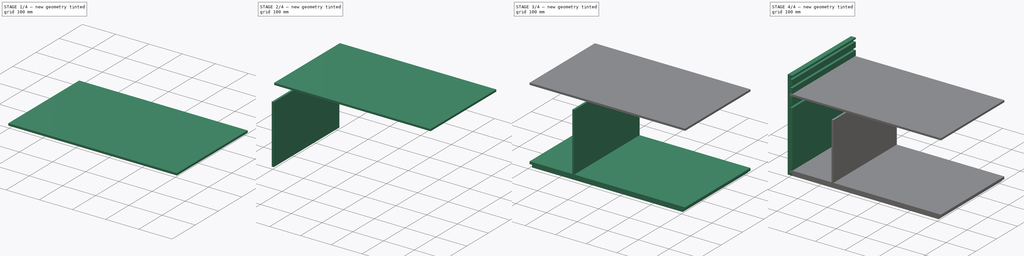
[diagram: build sequence overview — one tinted view per stage of 4, left to right]
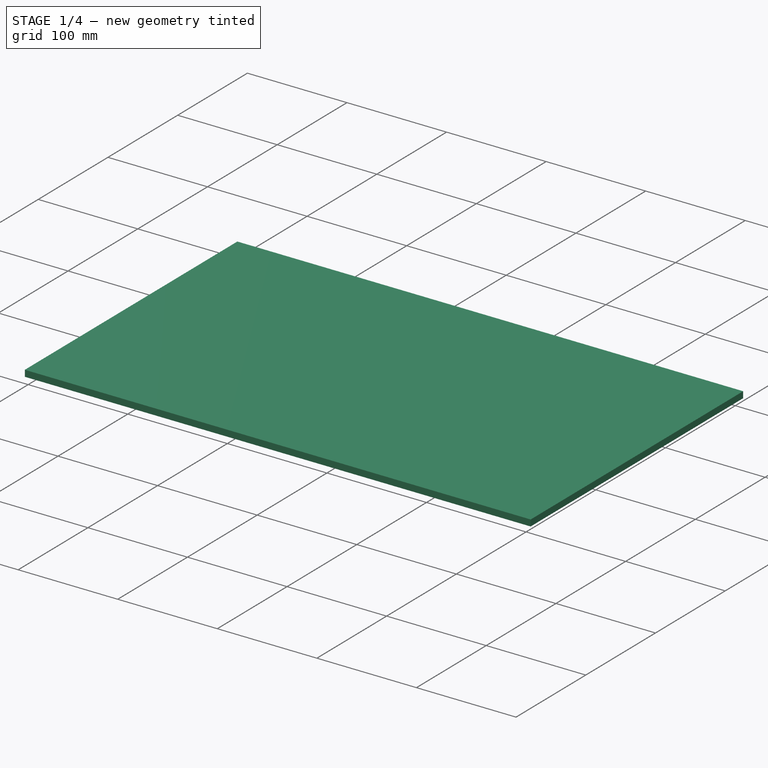
[diagram: stage 1 of 4 — iso view after this stage's code; geometry added in this stage tinted green]
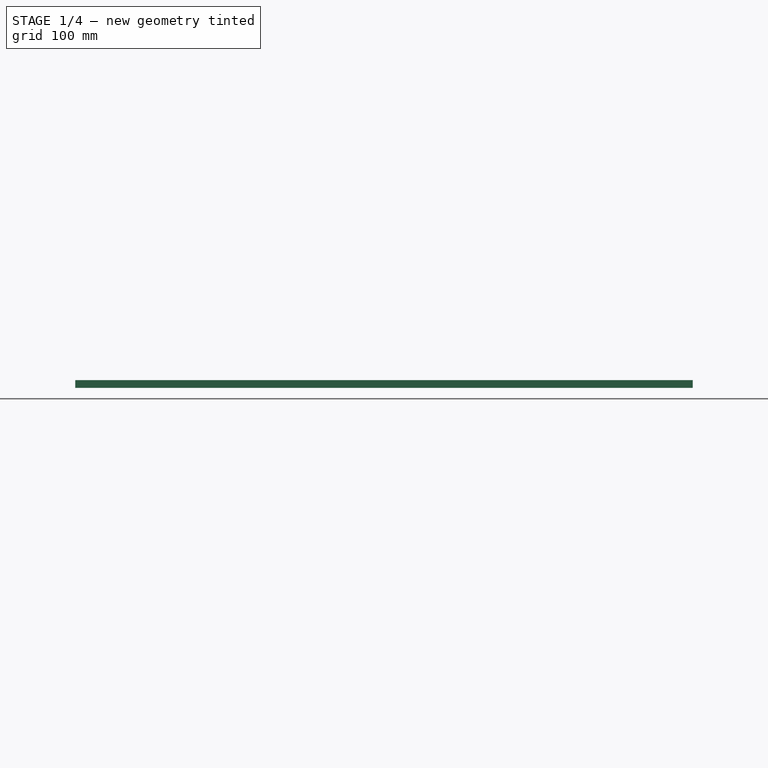
[diagram: stage 1 of 4 — front view after this stage's code; geometry added in this stage tinted green]
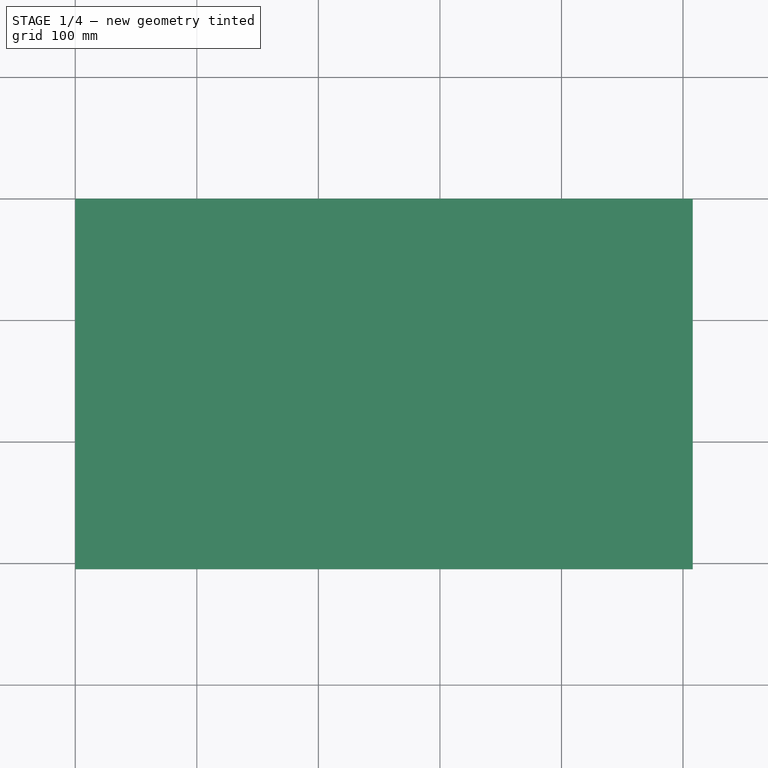
[diagram: stage 1 of 4 — top view after this stage's code; geometry added in this stage tinted green]
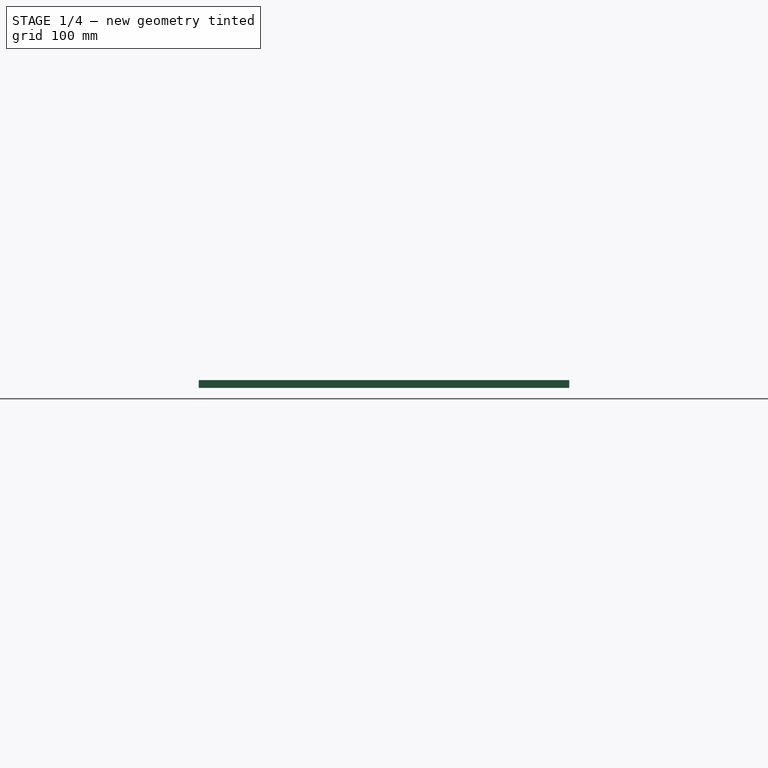
[diagram: stage 1 of 4 — right view after this stage's code; geometry added in this stage tinted green]
FCSTD DOCUMENT  (FreeCAD 0.19R24291 (Git))
Label: SanderNSandPaper
License: All rights reserved
LicenseURL: http://en.wikipedia.org/wiki/All_rights_reserved
objects: PartDesign::Body×9, Sketcher::SketchObject×5, PartDesign::FeatureBase×5, PartDesign::Pad×4, PartDesign::Pocket×1, App::Part×1
note: 29 computed .brp shape members not serialized (recipe doc carries the construction recipe); baked Part::Feature solids carry a one-line shape summary decoded from their .brp

FEATURE [PartDesign::Body] Body007  label="ShelfSupportClone"
  Group = -> [Clone004]
  Origin = -> Origin008
  Placement = pos=(224.866,0,0) rot=(0,0,1;0rad)
  Tip = -> Clone004
FEATURE [Sketcher::SketchObject] Sketch003
  FullyConstrained = true
  MapMode = 5
  Placement = pos=(0,0,0) rot=(1,0,0;1.5708rad)
  Support = -> [XZ_Plane009]
  sketch-geometry (4):
    g0: LineSegment StartX=0 StartY=0 StartZ=0 EndX=508 EndY=0 EndZ=0
    g1: LineSegment StartX=508 StartY=0 StartZ=0 EndX=508 EndY=6.35 EndZ=0
    g2: LineSegment StartX=508 StartY=6.35 StartZ=0 EndX=0 EndY=6.35 EndZ=0
    g3: LineSegment StartX=0 StartY=6.35 StartZ=0 EndX=0 EndY=0 EndZ=0
  constraints (11):
    c: Coincident(g0,g1)
    c: Coincident(g1,g2)
    c: Coincident(g2,g3)
    c: Coincident(g3,g0)
    c: Horizontal(g0)
    c: Horizontal(g2)
    c: Vertical(g1)
    c: Vertical(g3)
    c: Coincident(g0,g-1)
    c: DistanceX(g0,g0) = 508
    c: DistanceY(g3,g3) = 6.35
FEATURE [PartDesign::Pad] Pad003
  Direction = (1,1,1)
  Length = 304.8
  Length2 = 99.9998
  Placement = pos=(0,0,0) rot=(1,0,0;1.5708rad)
  Profile = -> Sketch003
  Type = 0
FEATURE [Sketcher::SketchObject] Sketch004
  FullyConstrained = false
  MapMode = 5
  Placement = pos=(0,0,0) rot=(0.57735,0.57735,0.57735;2.0944rad)
  Support = -> [YZ_Plane009]
  sketch-geometry (4):
    g0: LineSegment StartX=-203.2 StartY=-16.9822 StartZ=0 EndX=-76.2 EndY=-16.9822 EndZ=0
    g1: LineSegment StartX=-76.2 StartY=-55.0822 StartZ=0 EndX=-203.2 EndY=-55.0822 EndZ=0
    g2: ArcOfCircle CenterX=-203.2 CenterY=-36.0322 CenterZ=0 NormalX=0 NormalY=0 NormalZ=1 AngleXU=0 Radius=19.05 StartAngle=1.5708 EndAngle=4.71239
    g3: ArcOfCircle CenterX=-76.2 CenterY=-36.0322 CenterZ=0 NormalX=0 NormalY=0 NormalZ=1 AngleXU=0 Radius=19.05 StartAngle=4.71239 EndAngle=7.85398
  constraints (10):
    c: Horizontal(g0)
    c: Horizontal(g1)
    c: DistanceX(g0,g0) = 127
    c: Symmetric(g0,g1,g2)
    c: Coincident(g3,g0)
    c: Coincident(g2,g0)
    c: Equal(g0,g1)
    c: Vertical(g0,g1)
    c: Tangent(g1,g3) = 1.5708
    c: DistanceY(g1,g0) = 38.1
FEATURE [PartDesign::Pocket] Pocket
  BaseFeature = -> Pad003
  Length = 5.0038
  Length2 = 99.9998
  Placement = pos=(0,0,0) rot=(1,0,0;1.5708rad)
  Profile = -> Sketch004
  Type = 1
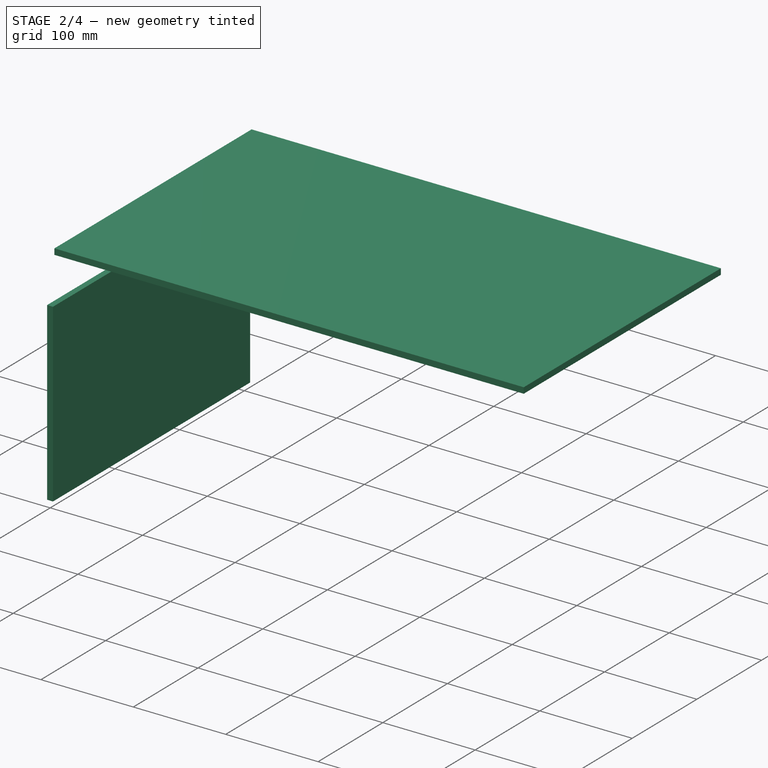
[diagram: stage 2 of 4 — iso view after this stage's code; geometry added in this stage tinted green]
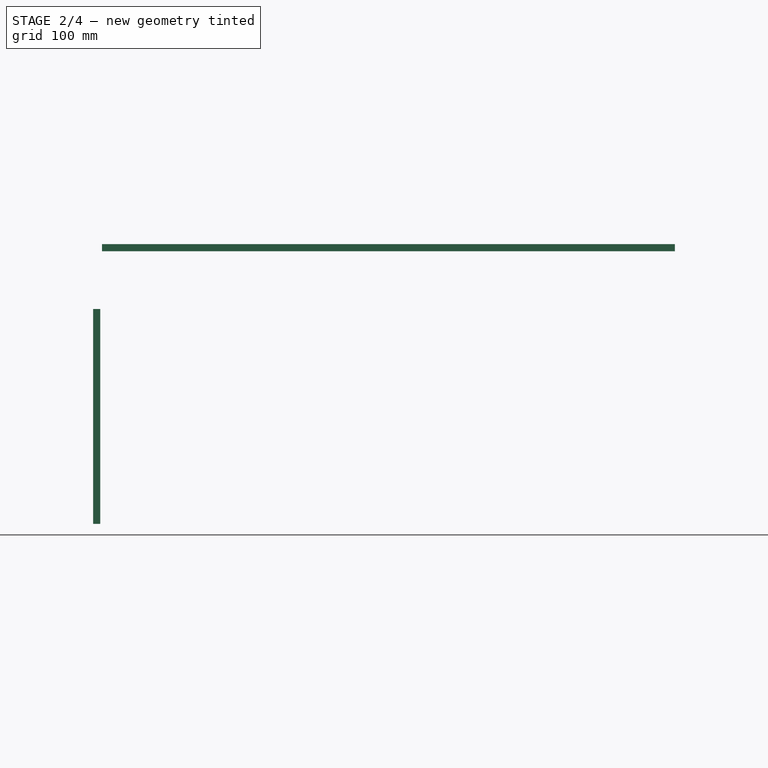
[diagram: stage 2 of 4 — front view after this stage's code; geometry added in this stage tinted green]
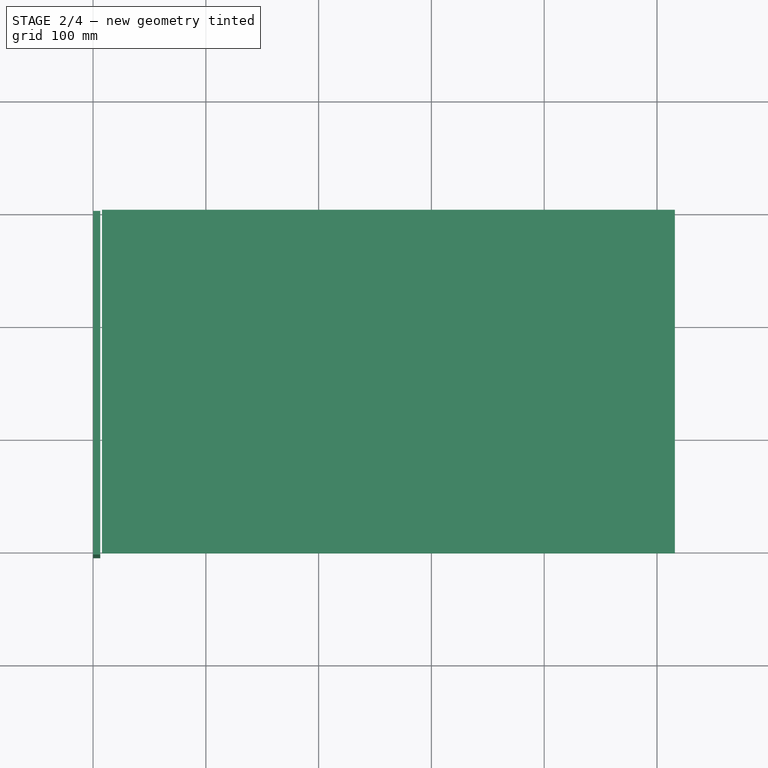
[diagram: stage 2 of 4 — top view after this stage's code; geometry added in this stage tinted green]
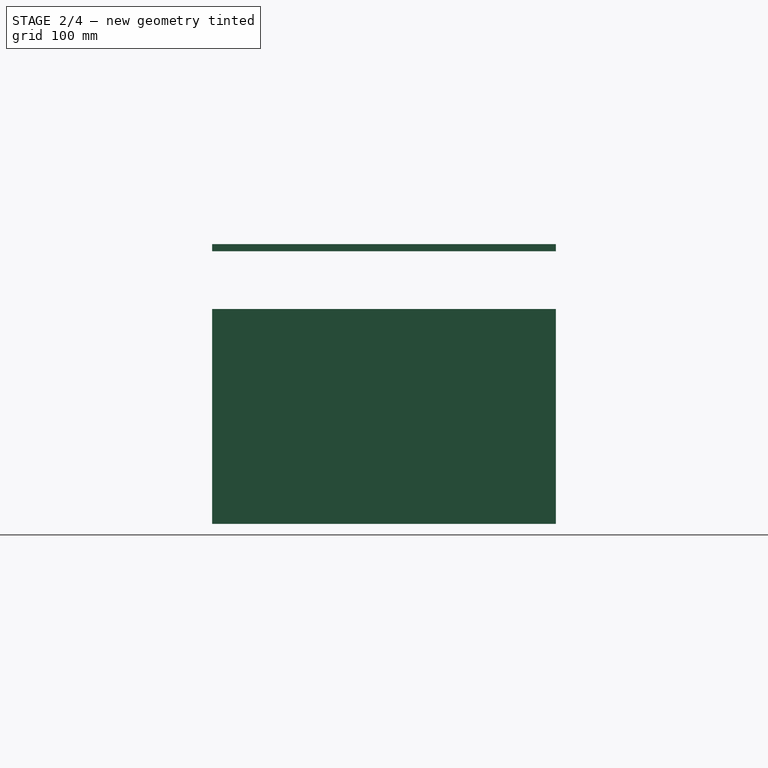
[diagram: stage 2 of 4 — right view after this stage's code; geometry added in this stage tinted green]
FEATURE [PartDesign::Body] Body003  label="Shelf1Clone"
  Group = -> [Clone001]
  Origin = -> Origin004
  Placement = pos=(0,-305.105,222.885) rot=(1,0,0;3.14159rad)
  Tip = -> Clone001
FEATURE [Sketcher::SketchObject] Sketch002
  FullyConstrained = true
  MapMode = 5
  Placement = pos=(0,0,0) rot=(1,0,0;1.5708rad)
  Support = -> [XZ_Plane007]
  sketch-geometry (4):
    g0: LineSegment StartX=0 StartY=0 StartZ=0 EndX=6.35 EndY=0 EndZ=0
    g1: LineSegment StartX=6.35 StartY=0 StartZ=0 EndX=6.35 EndY=190.5 EndZ=0
    g2: LineSegment StartX=6.35 StartY=190.5 StartZ=0 EndX=0 EndY=190.5 EndZ=0
    g3: LineSegment StartX=0 StartY=190.5 StartZ=0 EndX=0 EndY=0 EndZ=0
  constraints (11):
    c: Coincident(g0,g1)
    c: Coincident(g1,g2)
    c: Coincident(g2,g3)
    c: Coincident(g3,g0)
    c: Horizontal(g0)
    c: Horizontal(g2)
    c: Vertical(g1)
    c: Vertical(g3)
    c: Coincident(g0,g-1)
    c: DistanceY(g1,g1) = 190.5
    c: DistanceX(g0,g0) = 6.35
FEATURE [PartDesign::Pad] Pad002
  Direction = (1,1,1)
  Length = 304.8
  Length2 = 99.9998
  Placement = pos=(0,0,0) rot=(1,0,0;1.5708rad)
  Profile = -> Sketch002
  Type = 0
FEATURE [PartDesign::Body] Body008  label="ShelfSandPaper"
  Group = -> [Sketch003,Pad003,Sketch004,Pocket]
  Origin = -> Origin009
  Placement = pos=(7.9248,0,241.706) rot=(0,0,1;0rad)
  Tip = -> Pocket
FEATURE [App::Part] Part
  Group = -> [Body,Body002,Body006,Body008]
  Origin = -> Origin
FEATURE [PartDesign::FeatureBase] Clone005
  BaseFeature = -> Body008
  Placement = pos=(7.9248,0,241.706) rot=(0,0,1;0rad)
FEATURE [PartDesign::Body] Body009  label="ShelfSand2Clone"
  Group = -> [Clone005]
  Origin = -> Origin010
  Placement = pos=(0,0,24.765) rot=(0,0,1;0rad)
  Tip = -> Clone005
FEATURE [PartDesign::FeatureBase] Clone006
  BaseFeature = -> Body008
  Placement = pos=(7.9248,0,241.706) rot=(0,0,1;0rad)
FEATURE [PartDesign::Body] Body010  label="ShelfSand3Clone"
  Group = -> [Clone006]
  Origin = -> Origin011
  Placement = pos=(0,0,50.5206) rot=(0,0,1;0rad)
  Tip = -> Clone006
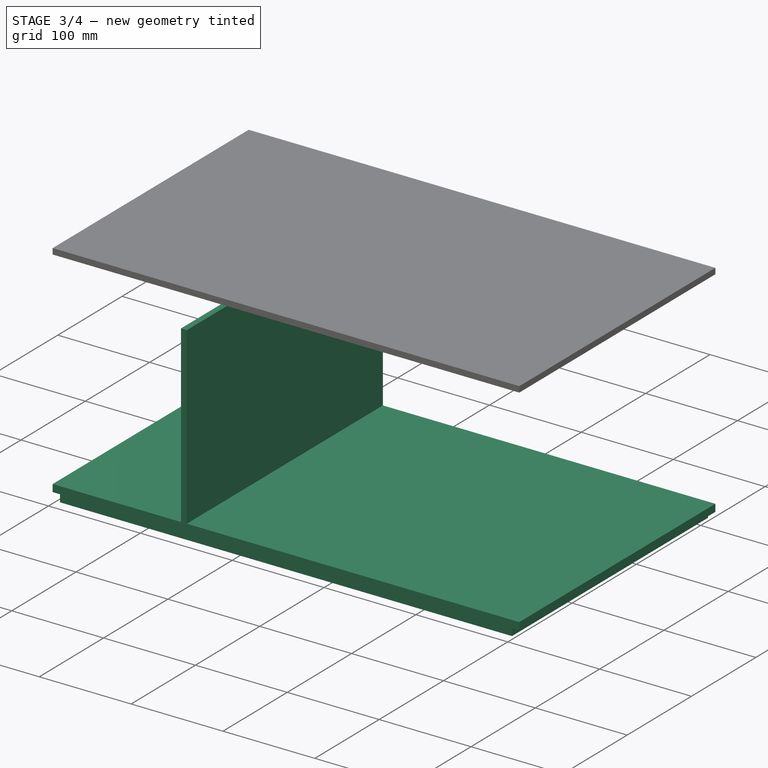
[diagram: stage 3 of 4 — iso view after this stage's code; geometry added in this stage tinted green]
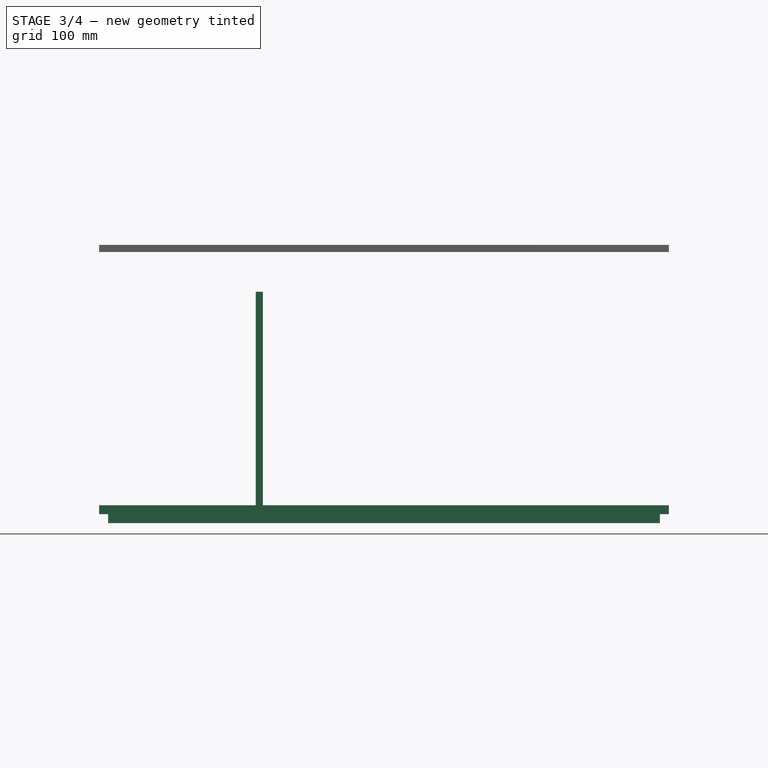
[diagram: stage 3 of 4 — front view after this stage's code; geometry added in this stage tinted green]
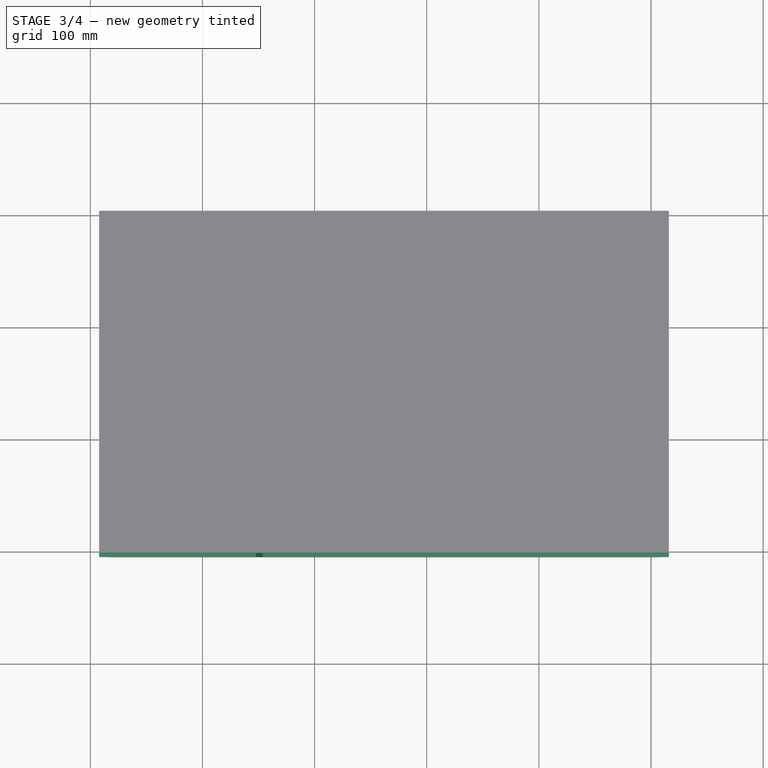
[diagram: stage 3 of 4 — top view after this stage's code; geometry added in this stage tinted green]
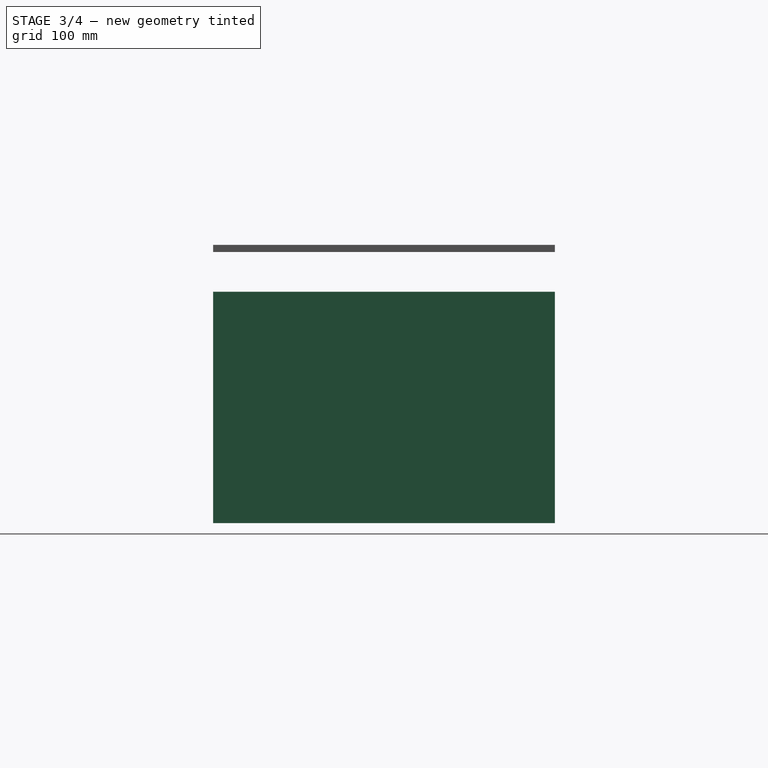
[diagram: stage 3 of 4 — right view after this stage's code; geometry added in this stage tinted green]
FEATURE [PartDesign::Body] Body001  label="RightSideClone"
  Group = -> [Clone]
  Origin = -> Origin002
  Placement = pos=(523.024,-304.502,0) rot=(0,0,-1;3.14159rad)
  Tip = -> Clone
FEATURE [Sketcher::SketchObject] Sketch001
  FullyConstrained = true
  MapMode = 5
  Placement = pos=(0,0,0) rot=(1,0,0;1.5708rad)
  Support = -> [XZ_Plane003]
  sketch-geometry (8):
    g0: LineSegment StartX=5.68e-14 StartY=15.875 StartZ=0 EndX=-2.49e-14 EndY=7.9375 EndZ=0
    g1: LineSegment StartX=-2.49e-14 StartY=7.9375 StartZ=0 EndX=7.9375 EndY=7.9375 EndZ=0
    g2: LineSegment StartX=7.9375 StartY=7.9375 StartZ=0 EndX=7.9375 EndY=3.91e-14 EndZ=0
    g3: LineSegment StartX=7.9375 StartY=3.91e-14 StartZ=0 EndX=500.063 EndY=-1.84e-14 EndZ=0
    g4: LineSegment StartX=500.063 StartY=-1.84e-14 StartZ=0 EndX=500.063 EndY=7.9375 EndZ=0
    g5: LineSegment StartX=500.063 StartY=7.9375 StartZ=0 EndX=508 EndY=7.9375 EndZ=0
    g6: LineSegment StartX=508 StartY=7.9375 StartZ=0 EndX=508 EndY=15.875 EndZ=0
    g7: LineSegment StartX=508 StartY=15.875 StartZ=0 EndX=5.68e-14 EndY=15.875 EndZ=0
  constraints (24):
    c: PointOnObject(g0,g-2)
    c: PointOnObject(g0,g-2)
    c: Coincident(g0,g1)
    c: Horizontal(g1)
    c: Coincident(g1,g2)
    c: PointOnObject(g2,g-1)
    c: Vertical(g2)
    c: Coincident(g2,g3)
    c: PointOnObject(g3,g-1)
    c: Coincident(g3,g4)
    c: Vertical(g4)
    c: Coincident(g4,g5)
    c: Horizontal(g5)
    c: Coincident(g5,g6)
    c: Vertical(g6)
    c: Coincident(g6,g7)
    c: Coincident(g7,g0)
    c: Horizontal(g7)
    c: Equal(g2,g4)
    c: Equal(g0,g2)
    c: DistanceY(g-1,g0) = 15.875
    c: Equal(g1,g5)
    c: Equal(g2,g1)
    c: DistanceX(g7,g7) = 508
FEATURE [PartDesign::Pad] Pad001
  Direction = (1,1,1)
  Length = 304.8
  Length2 = 99.9998
  Placement = pos=(0,0,0) rot=(1,0,0;1.5708rad)
  Profile = -> Sketch001
  Type = 0
FEATURE [PartDesign::Body] Body002  label="Bottom"
  Group = -> [Sketch001,Pad001]
  Origin = -> Origin003
  Placement = pos=(7.9248,0,0) rot=(0,0,1;0rad)
  Tip = -> Pad001
FEATURE [PartDesign::FeatureBase] Clone001
  BaseFeature = -> Body002
  Placement = pos=(7.9248,0,0) rot=(0,0,1;0rad)
FEATURE [PartDesign::Body] Body006  label="ShelfSupport"
  Group = -> [Sketch002,Pad002]
  Origin = -> Origin007
  Placement = pos=(147.599,0,15.8496) rot=(0,0,1;0rad)
  Tip = -> Pad002
FEATURE [PartDesign::FeatureBase] Clone004
  BaseFeature = -> Body006
  Placement = pos=(147.599,0,15.8496) rot=(0,0,1;0rad)
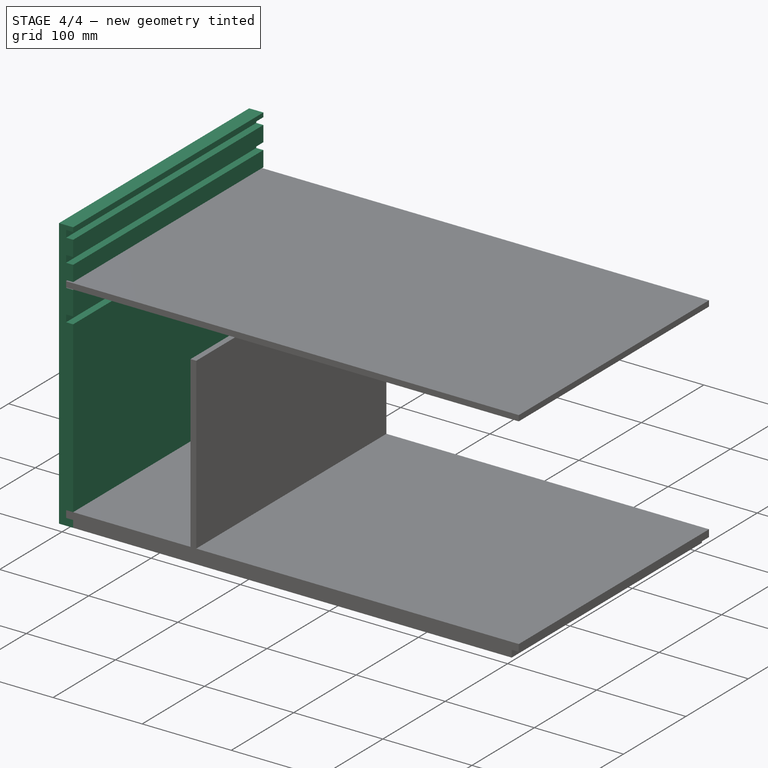
[diagram: stage 4 of 4 — iso view after this stage's code; geometry added in this stage tinted green]
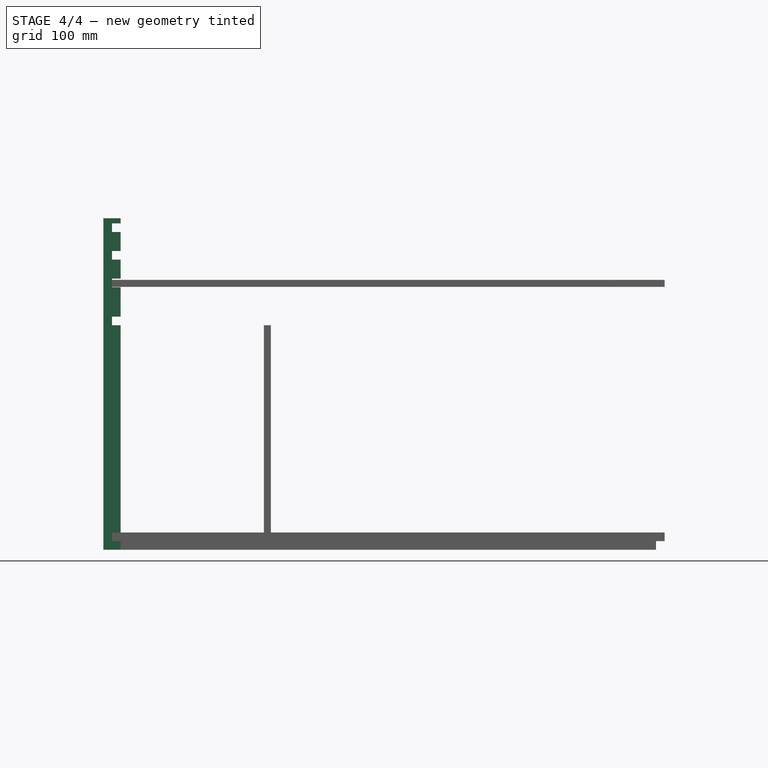
[diagram: stage 4 of 4 — front view after this stage's code; geometry added in this stage tinted green]
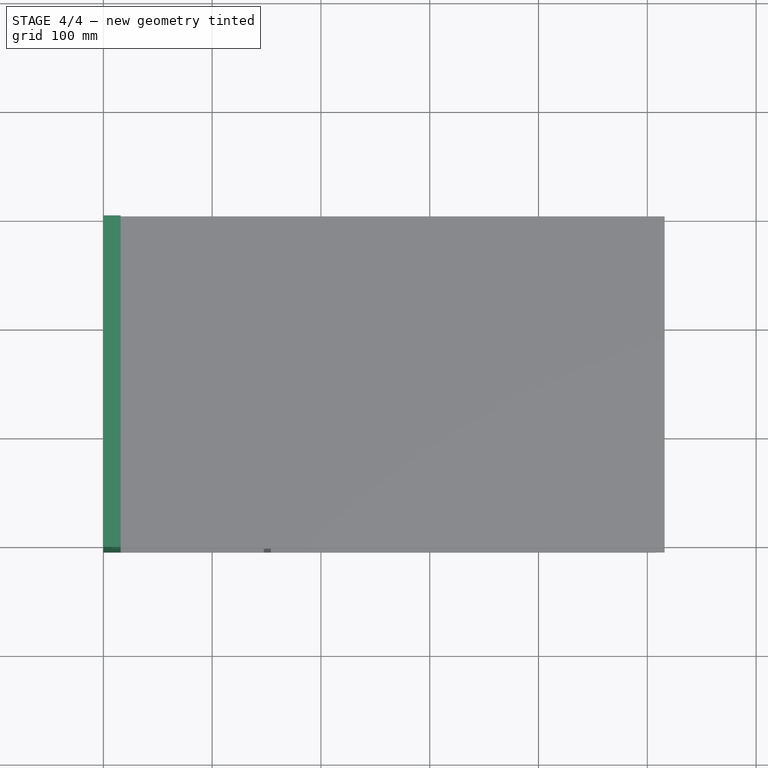
[diagram: stage 4 of 4 — top view after this stage's code; geometry added in this stage tinted green]
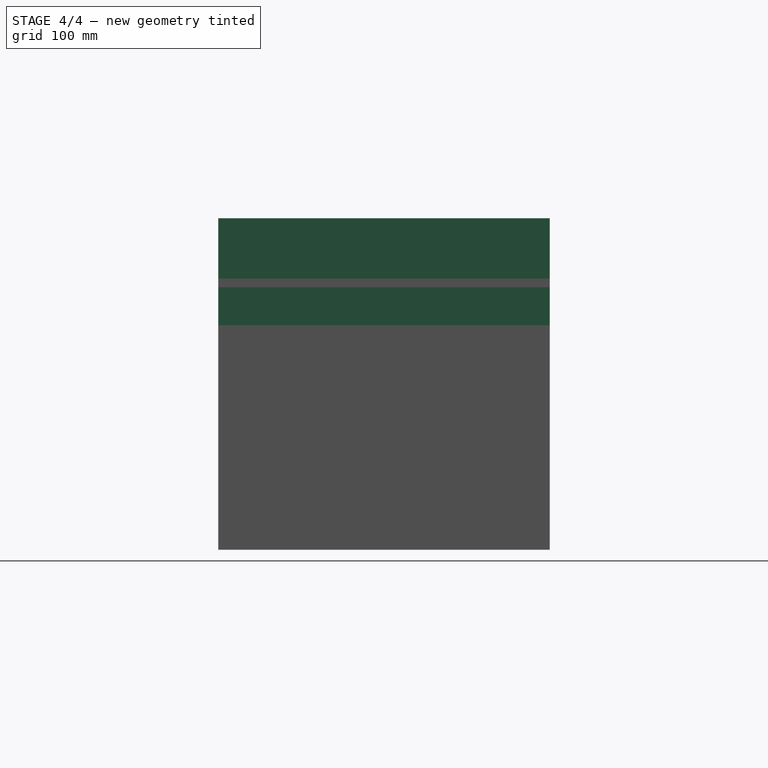
[diagram: stage 4 of 4 — right view after this stage's code; geometry added in this stage tinted green]
FEATURE [Sketcher::SketchObject] Sketch
  FullyConstrained = true
  MapMode = 5
  Placement = pos=(0,0,0) rot=(1,0,0;1.5708rad)
  Support = -> [XZ_Plane001]
  sketch-geometry (24):
    g0: LineSegment StartX=0 StartY=0 StartZ=0 EndX=15.875 EndY=0 EndZ=0
    g1: LineSegment StartX=15.875 StartY=0 StartZ=0 EndX=15.875 EndY=7.9375 EndZ=0
    g2: LineSegment StartX=15.875 StartY=7.9375 StartZ=0 EndX=7.9375 EndY=7.9375 EndZ=0
    g3: LineSegment StartX=7.9375 StartY=7.9375 StartZ=0 EndX=7.9375 EndY=15.875 EndZ=0
    g4: LineSegment StartX=7.9375 StartY=15.875 StartZ=0 EndX=15.875 EndY=15.875 EndZ=0
    g5: LineSegment StartX=15.875 StartY=274.637 StartZ=0 EndX=7.9375 EndY=274.637 EndZ=0
    g6: LineSegment StartX=7.9375 StartY=274.637 StartZ=0 EndX=7.9375 EndY=266.7 EndZ=0
    g7: LineSegment StartX=7.9375 StartY=266.7 StartZ=0 EndX=15.875 EndY=266.7 EndZ=0
    g8: LineSegment StartX=15.875 StartY=214.312 StartZ=0 EndX=7.9375 EndY=214.312 EndZ=0
    g9: LineSegment StartX=7.9375 StartY=214.312 StartZ=0 EndX=7.9375 EndY=206.375 EndZ=0
    g10: LineSegment StartX=7.9375 StartY=206.375 StartZ=0 EndX=15.875 EndY=206.375 EndZ=0
    g11: LineSegment StartX=15.875 StartY=249.238 StartZ=0 EndX=7.9375 EndY=249.238 EndZ=0
    g12: LineSegment StartX=7.9375 StartY=249.238 StartZ=0 EndX=7.9375 EndY=241.3 EndZ=0
    g13: LineSegment StartX=7.9375 StartY=241.3 StartZ=0 EndX=15.875 EndY=241.3 EndZ=0
    g14: LineSegment StartX=15.875 StartY=300.038 StartZ=0 EndX=7.9375 EndY=300.038 EndZ=0
    g15: LineSegment StartX=7.9375 StartY=300.038 StartZ=0 EndX=7.9375 EndY=292.1 EndZ=0
    g16: LineSegment StartX=7.9375 StartY=292.1 StartZ=0 EndX=15.875 EndY=292.1 EndZ=0
    g17: LineSegment StartX=15.875 StartY=304.8 StartZ=0 EndX=0 EndY=304.8 EndZ=0
    g18: LineSegment StartX=0 StartY=304.8 StartZ=0 EndX=0 EndY=0 EndZ=0
    g19: LineSegment StartX=15.875 StartY=15.875 StartZ=0 EndX=15.875 EndY=206.375 EndZ=0
    g20: LineSegment StartX=15.875 StartY=241.3 StartZ=0 EndX=15.875 EndY=214.312 EndZ=0
    g21: LineSegment StartX=15.875 StartY=266.7 StartZ=0 EndX=15.875 EndY=249.238 EndZ=0
    g22: LineSegment StartX=15.875 StartY=292.1 StartZ=0 EndX=15.875 EndY=274.637 EndZ=0
    g23: LineSegment StartX=15.875 StartY=304.8 StartZ=0 EndX=15.875 EndY=300.038 EndZ=0
  constraints (71):
    c: Coincident(g-1,g0)
    c: PointOnObject(g0,g-1)
    c: Coincident(g0,g1)
    c: Vertical(g1)
    c: Coincident(g1,g2)
    c: Coincident(g2,g3)
    c: Coincident(g3,g4)
    c: Horizontal(g5)
    c: Coincident(g5,g6)
    c: Vertical(g6)
    c: Coincident(g6,g7)
    c: Horizontal(g8)
    c: Coincident(g8,g9)
    c: Vertical(g9)
    c: Coincident(g9,g10)
    c: Horizontal(g11)
    c: Coincident(g11,g12)
    c: Vertical(g12)
    c: Coincident(g12,g13)
    c: Horizontal(g13)
    c: Coincident(g14,g15)
    c: Vertical(g15)
    c: Coincident(g15,g16)
    c: Horizontal(g16)
    c: Horizontal(g17)
    c: Coincident(g17,g18)
    c: Coincident(g18,g0)
    c: Vertical(g18)
    c: DistanceY(g18,g18) = 304.8
    c: Equal(g0,g17)
    c: DistanceX(g17,g17) = 15.875
    c: Vertical(g3)
    c: DistanceX(g2,g2) = 7.9375
    c: DistanceX(g0,g4) = 15.875
    c: Horizontal(g4)
    c: Horizontal(g2)
    c: DistanceY(g3,g3) = 7.9375
    c: DistanceY(g1,g1) = 7.9375
    c: Horizontal(g7)
    c: Horizontal(g10)
    c: Equal(g5,g7)
    c: Equal(g7,g8)
    c: Equal(g8,g10)
    c: Equal(g10,g11)
    c: Equal(g11,g13)
    c: Equal(g13,g16)
    c: Equal(g3,g6)
    c: Equal(g6,g9)
    c: Equal(g9,g12)
    c: Equal(g12,g15)
    c: Horizontal(g14)
    c: Equal(g14,g13)
    c: DistanceY(g4,g10) = 190.5
    c: DistanceY(g10,g13) = 34.925
    c: DistanceY(g13,g7) = 25.4
    c: DistanceY(g7,g16) = 25.4
    c: Coincident(g4,g19)
    c: Coincident(g19,g10)
    c: Vertical(g19)
    c: Coincident(g13,g20)
    c: Coincident(g20,g8)
    c: Vertical(g20)
    c: Coincident(g7,g21)
    c: Coincident(g21,g11)
    c: Vertical(g21)
    c: Coincident(g16,g22)
    c: Coincident(g22,g5)
    c: Vertical(g22)
    c: Coincident(g17,g23)
    c: Coincident(g23,g14)
    c: Equal(g8,g4)
FEATURE [PartDesign::Pad] Pad
  Direction = (1,1,1)
  Length = 304.8
  Length2 = 99.9998
  Placement = pos=(0,0,0) rot=(1,0,0;1.5708rad)
  Profile = -> Sketch
  Type = 0
FEATURE [PartDesign::Body] Body  label="LeftSide"
  Group = -> [Sketch,Pad]
  Origin = -> Origin001
  Tip = -> Pad
FEATURE [PartDesign::FeatureBase] Clone
  BaseFeature = -> Body
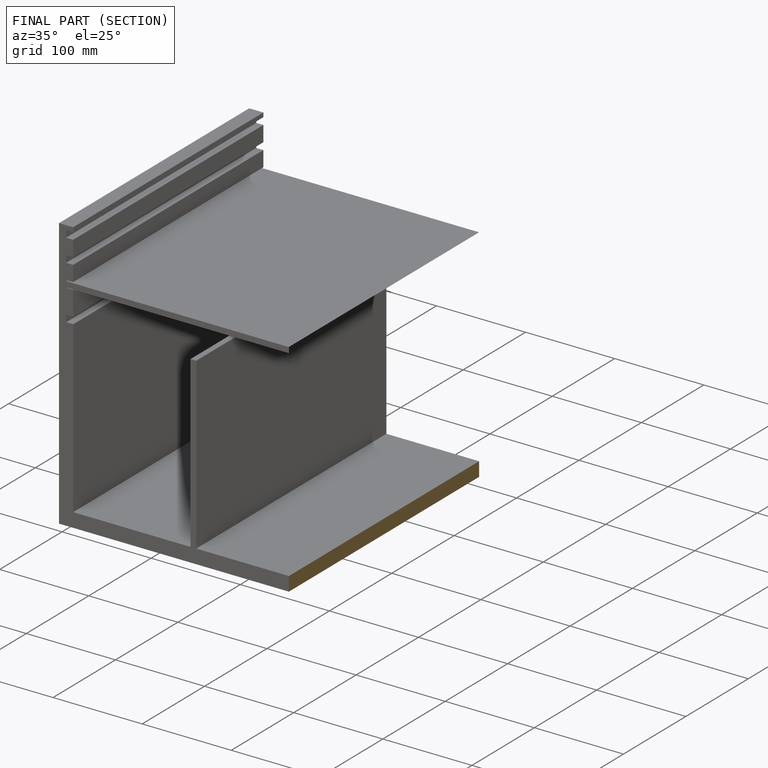
[diagram: finished part — half-section view (interior)]
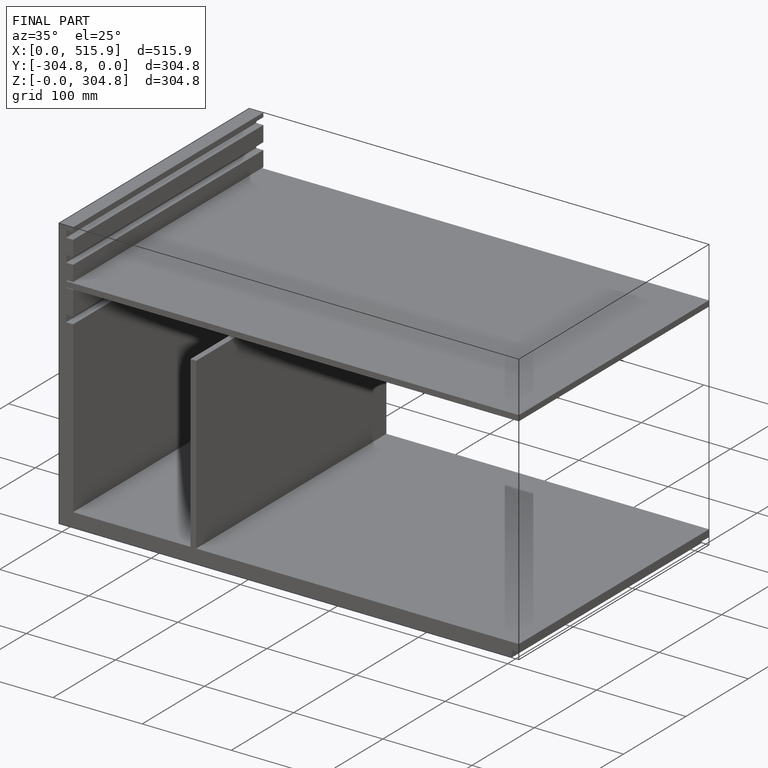
[diagram: finished part — iso view with bounding-box wireframe]
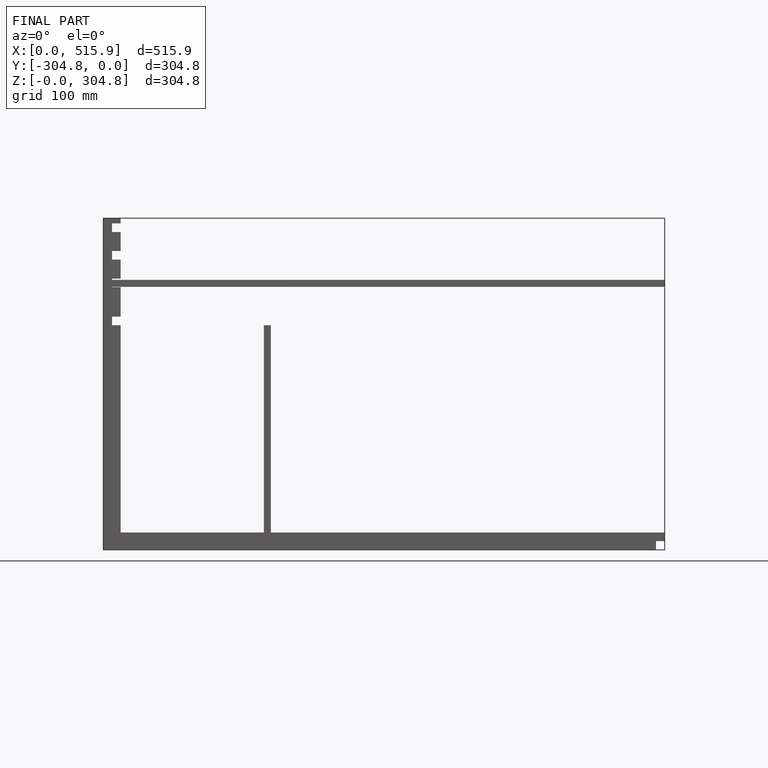
[diagram: finished part — front view with bounding-box wireframe]
